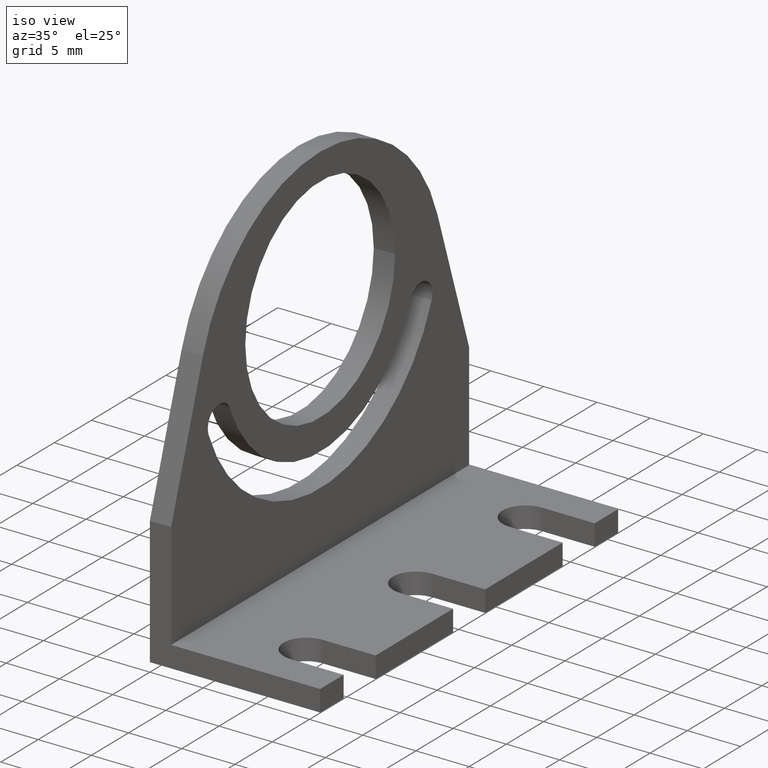
[diagram: clean part render]
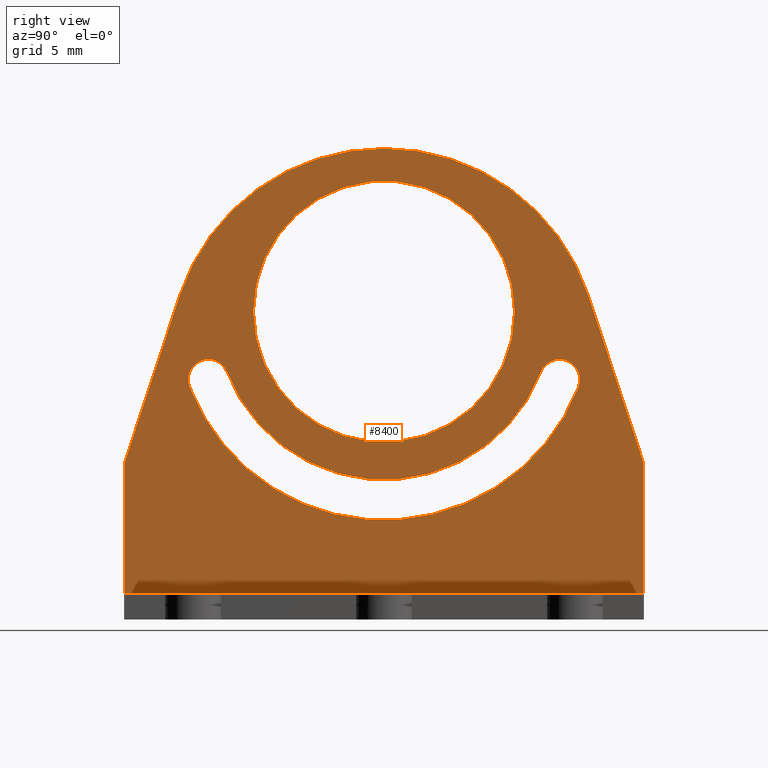
[diagram: tour spotlight — one face highlighted and labeled with its STEP entity id]
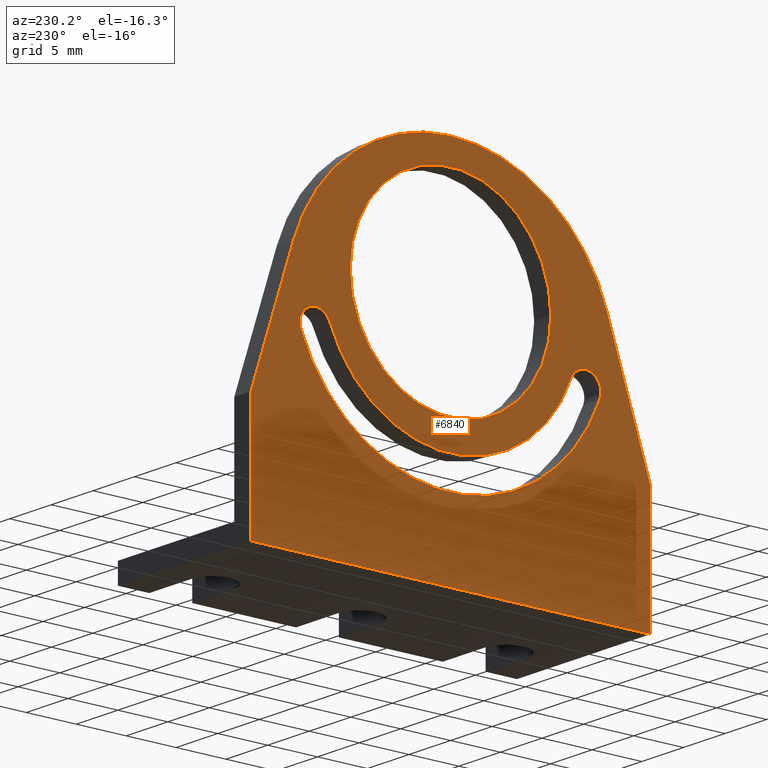
[diagram: tour spotlight — one face highlighted and labeled with its STEP entity id]
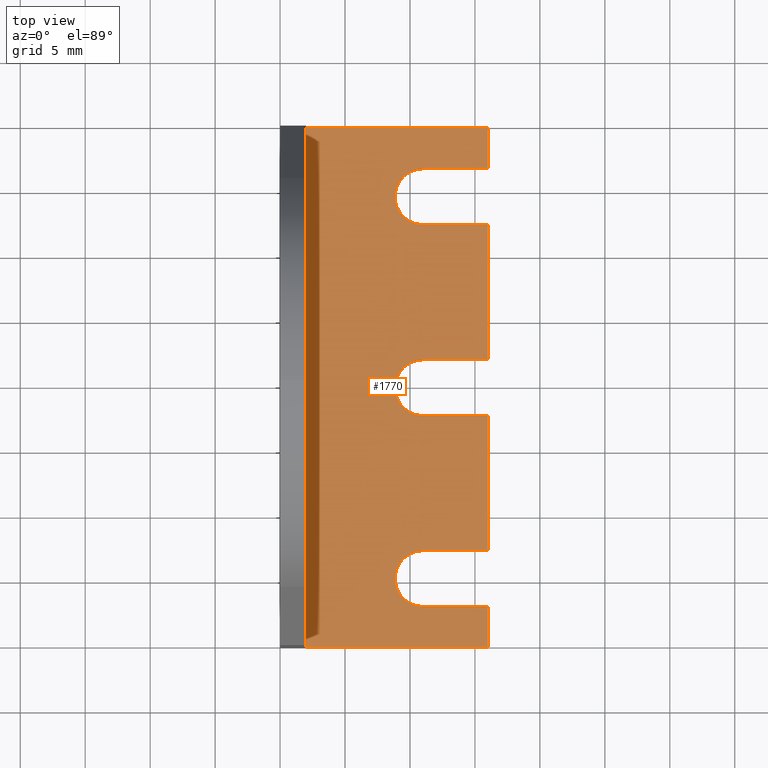
[diagram: tour spotlight — one face highlighted and labeled with its STEP entity id]
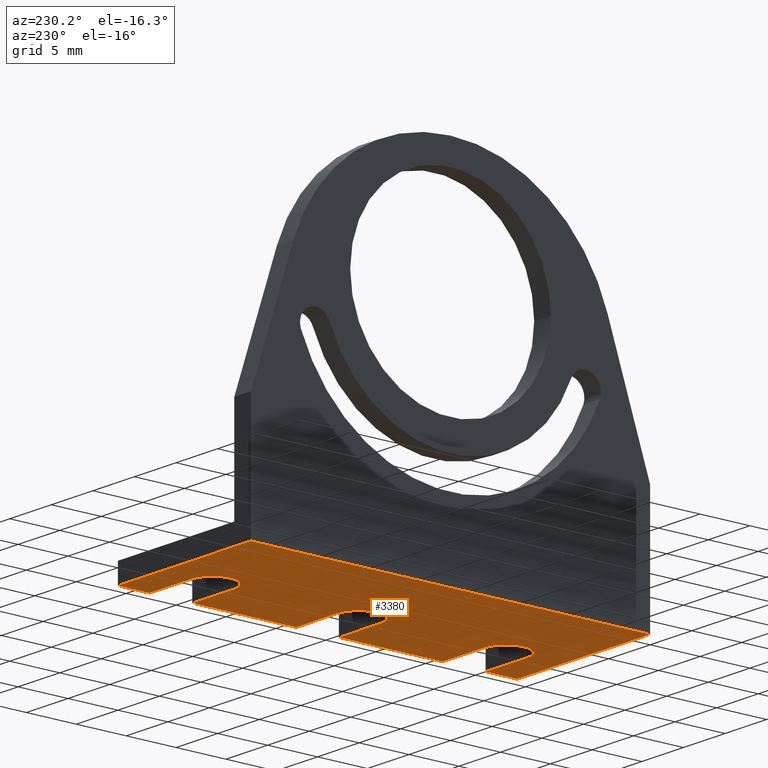
[diagram: tour spotlight — one face highlighted and labeled with its STEP entity id]
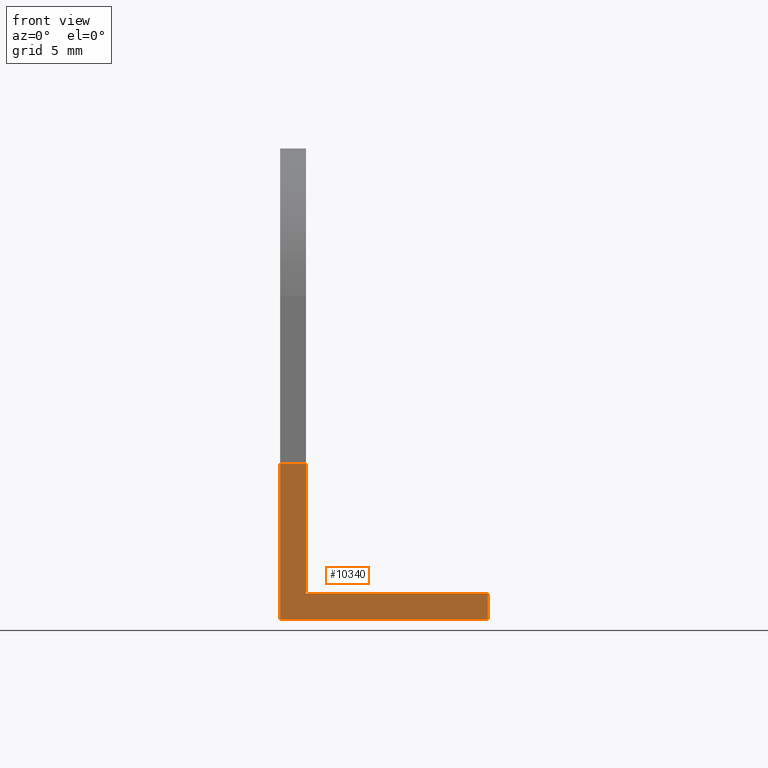
[diagram: tour spotlight — one face highlighted and labeled with its STEP entity id]
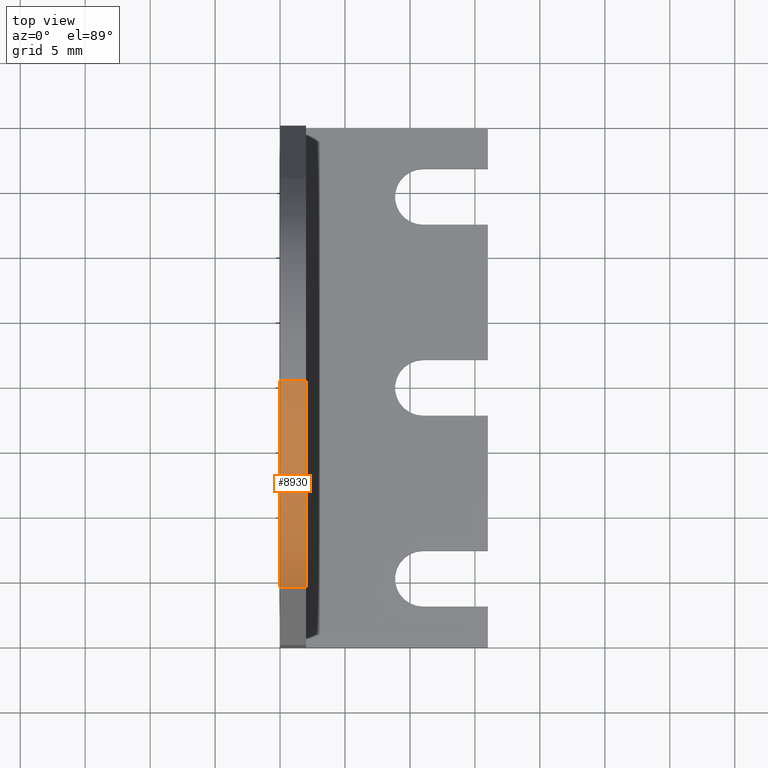
[diagram: tour spotlight — one face highlighted and labeled with its STEP entity id]
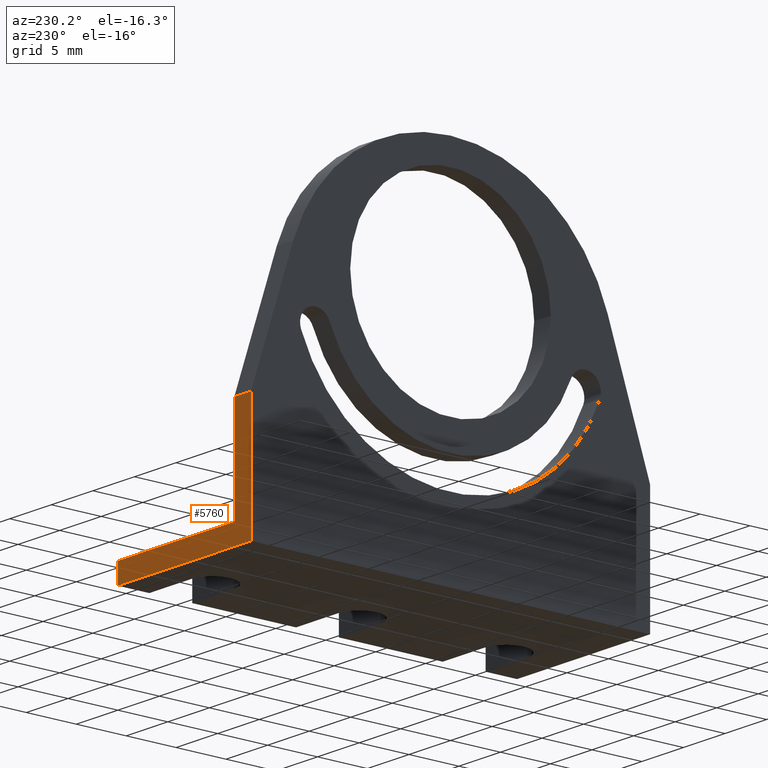
[diagram: tour spotlight — one face highlighted and labeled with its STEP entity id]
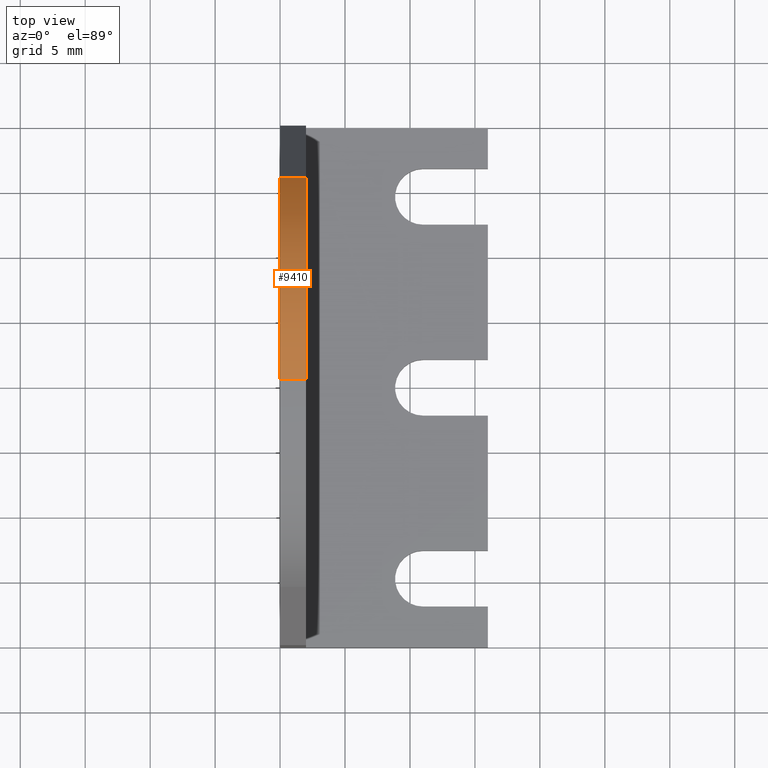
[diagram: tour spotlight — one face highlighted and labeled with its STEP entity id]
A machine part: a face-by-face anatomy tour. The part has 30 B-rep faces; the first image is the clean iso view, then the 8 largest visible faces are spotlighted one at a time (largest first), each with its STEP entity span.

Face 1 — right view, entity #8400. In plain terms, the highlighted planar face has unit normal (-1, 0, 0).
Definition (entity closure, byte-faithful):
#1570=CARTESIAN_POINT('',(-20.,1.0474940661879E-17,2.));
#1580=VERTEX_POINT('',#1570);
#1610=CARTESIAN_POINT('',(0.,1.04749406618786E-17,2.));
#1620=DIRECTION('',(-1.,1.70553012815438E-32,0.));
#1630=VECTOR('',#1620,1.);
#1640=LINE('',#1610,#1630);
#1650=CARTESIAN_POINT('',(20.,1.04749406618783E-17,2.));
#1660=VERTEX_POINT('',#1650);
#1670=EDGE_CURVE('',#1660,#1580,#1640,.T.);
#5040=CARTESIAN_POINT('',(-14.9702258308515,15.9125274451357,2.));
#5050=VERTEX_POINT('',#5040);
#5230=CARTESIAN_POINT('',(14.9702258308515,15.9125274451357,2.));
#5240=VERTEX_POINT('',#5230);
#5270=CARTESIAN_POINT('',(0.,21.7,2.));
#5280=DIRECTION('',(0.,0.,-1.));
#5290=DIRECTION('',(0.932724350831865,-0.360590190334229,0.));
#5300=AXIS2_PLACEMENT_3D('',#5270,#5280,#5290);
#5310=CIRCLE('',#5300,16.05);
#5320=EDGE_CURVE('',#5240,#5050,#5310,.T.);
#5550=CARTESIAN_POINT('',(20.,10.,2.));
#5560=VERTEX_POINT('',#5550);
#5680=CARTESIAN_POINT('',(20.,0.,2.));
#5690=DIRECTION('',(0.,1.,0.));
#5700=VECTOR('',#5690,1.);
#5710=LINE('',#5680,#5700);
#5720=EDGE_CURVE('',#1660,#5560,#5710,.T.);
#7010=CARTESIAN_POINT('',(-10.05,21.7,2.));
#7020=VERTEX_POINT('',#7010);
#7050=CARTESIAN_POINT('',(0.,21.7,2.));
#7060=DIRECTION('',(0.,0.,-1.));
#7070=DIRECTION('',(1.,0.,0.));
#7080=AXIS2_PLACEMENT_3D('',#7050,#7060,#7070);
#7090=CIRCLE('',#7080,10.05);
#7100=CARTESIAN_POINT('',(10.05,21.7,2.));
#7110=VERTEX_POINT('',#7100);
#7120=EDGE_CURVE('',#7020,#7110,#7090,.T.);
#7500=CARTESIAN_POINT('',(20.,34.25,2.));
#7510=DIRECTION('',(0.,0.,-1.));
#7520=DIRECTION('',(-1.,0.,0.));
#7530=AXIS2_PLACEMENT_3D('',#7500,#7510,#7520);
#7540=PLANE('',#7530);
#7550=CARTESIAN_POINT('',(-13.5245030870621,16.4714422401539,2.));
#7560=DIRECTION('',(0.,0.,-1.));
#7570=DIRECTION('',(-0.932724350831821,-0.360590190334342,0.));
#7580=AXIS2_PLACEMENT_3D('',#7550,#7560,#7570);
#7590=CIRCLE('',#7580,1.55);
#7600=CARTESIAN_POINT('',(-12.0787803432728,17.0303570351721,2.));
#7610=VERTEX_POINT('',#7600);
#7620=EDGE_CURVE('',#5050,#7610,#7590,.T.);
#7630=ORIENTED_EDGE('',*,*,#7620,.T.);
#7640=ORIENTED_EDGE('',*,*,#5320,.T.);
#7650=CARTESIAN_POINT('',(13.5245030870621,16.4714422401539,2.));
#7660=DIRECTION('',(0.,0.,-1.));
#7670=DIRECTION('',(-0.932724350831755,0.360590190334513,0.));
#7680=AXIS2_PLACEMENT_3D('',#7650,#7660,#7670);
#7690=CIRCLE('',#7680,1.55);
#7700=CARTESIAN_POINT('',(12.0787803432727,17.0303570351719,2.));
#7710=VERTEX_POINT('',#7700);
#7720=EDGE_CURVE('',#7710,#5240,#7690,.T.);
#7730=ORIENTED_EDGE('',*,*,#7720,.T.);
#7740=CARTESIAN_POINT('',(0.,21.7,2.));
#7750=DIRECTION('',(0.,0.,1.));
#7760=DIRECTION('',(-0.932724350831883,-0.360590190334183,0.));
#7770=AXIS2_PLACEMENT_3D('',#7740,#7750,#7760);
#7780=CIRCLE('',#7770,12.95);
#7790=EDGE_CURVE('',#7610,#7710,#7780,.T.);
#7800=ORIENTED_EDGE('',*,*,#7790,.T.);
#7810=EDGE_LOOP('',(#7800,#7730,#7640,#7630));
#7820=FACE_BOUND('',#7810,.T.);
#7830=ORIENTED_EDGE('',*,*,#7120,.T.);
#7840=EDGE_CURVE('',#7110,#7020,#7090,.T.);
#7850=ORIENTED_EDGE('',*,*,#7840,.T.);
#7860=EDGE_LOOP('',(#7850,#7830));
#7870=FACE_BOUND('',#7860,.T.);
#7880=CARTESIAN_POINT('',(-23.2989690721649,0.,2.));
#7890=DIRECTION('',(-0.313289164578338,-0.949657780128088,0.));
#7900=VECTOR('',#7890,1.);
#7910=LINE('',#7880,#7900);
#7920=CARTESIAN_POINT('',(-15.7379723825014,22.9192712155426,2.));
#7930=VERTEX_POINT('',#7920);
#7940=CARTESIAN_POINT('',(-20.,9.99999999999998,2.));
#7950=VERTEX_POINT('',#7940);
#7960=EDGE_CURVE('',#7930,#7950,#7910,.T.);
#7970=ORIENTED_EDGE('',*,*,#7960,.T.);
#7980=CARTESIAN_POINT('',(-0.0686190103879733,17.75,2.));
#7990=DIRECTION('',(0.,0.,1.));
#8000=DIRECTION('',(2.25408917120865E-16,1.,0.));
#8010=AXIS2_PLACEMENT_3D('',#7980,#7990,#8000);
#8020=CIRCLE('',#8010,16.5);
#8030=CARTESIAN_POINT('',(-0.0686190103879731,34.25,2.));
#8040=VERTEX_POINT('',#8030);
#8050=EDGE_CURVE('',#8040,#7930,#8020,.T.);
#8060=ORIENTED_EDGE('',*,*,#8050,.T.);
#8070=CARTESIAN_POINT('',(0.0686190103879731,34.25,2.));
#8080=DIRECTION('',(-1.,0.,0.));
#8090=VECTOR('',#8080,1.);
#8100=LINE('',#8070,#8090);
#8110=CARTESIAN_POINT('',(0.0686190103879714,34.25,2.));
#8120=VERTEX_POINT('',#8110);
#8130=EDGE_CURVE('',#8120,#8040,#8100,.T.);
#8140=ORIENTED_EDGE('',*,*,#8130,.T.);
#8150=CARTESIAN_POINT('',(0.0686190103879724,17.75,2.));
#8160=DIRECTION('',(0.,0.,1.));
#8170=DIRECTION('',(0.949657780128088,0.313289164578336,0.));
#8180=AXIS2_PLACEMENT_3D('',#8150,#8160,#8170);
#8190=CIRCLE('',#8180,16.5);
#8200=CARTESIAN_POINT('',(15.7379723825014,22.9192712155426,2.));
#8210=VERTEX_POINT('',#8200);
#8220=EDGE_CURVE('',#8210,#8120,#8190,.T.);
#8230=ORIENTED_EDGE('',*,*,#8220,.T.);
#8240=CARTESIAN_POINT('',(23.2989690721649,0.,2.));
#8250=DIRECTION('',(-0.313289164578338,0.949657780128088,0.));
#8260=VECTOR('',#8250,1.);
#8270=LINE('',#8240,#8260);
#8280=EDGE_CURVE('',#5560,#8210,#8270,.T.);
#8290=ORIENTED_EDGE('',*,*,#8280,.T.);
#8300=ORIENTED_EDGE('',*,*,#5720,.T.);
#8310=ORIENTED_EDGE('',*,*,#1670,.F.);
#8320=CARTESIAN_POINT('',(-20.,0.,2.));
#8330=DIRECTION('',(0.,-1.,0.));
#8340=VECTOR('',#8330,1.);
#8350=LINE('',#8320,#8340);
#8360=EDGE_CURVE('',#7950,#1580,#8350,.T.);
#8370=ORIENTED_EDGE('',*,*,#8360,.T.);
#8380=EDGE_LOOP('',(#8370,#8310,#8300,#8290,#8230,#8140,#8060,#7970));
#8390=FACE_OUTER_BOUND('',#8380,.T.);
#8400=ADVANCED_FACE('',(#7820,#7870,#8390),#7540,.F.);

Face 2 — auxiliary view, entity #6840. In plain terms, the highlighted planar face has unit normal (-1, 0, 0).
Definition (entity closure, byte-faithful):
#2270=CARTESIAN_POINT('',(20.,-2.,0.));
#2280=VERTEX_POINT('',#2270);
#2310=CARTESIAN_POINT('',(0.,-2.,0.));
#2320=DIRECTION('',(-1.,1.70553012815438E-32,0.));
#2330=VECTOR('',#2320,1.);
#2340=LINE('',#2310,#2330);
#2350=CARTESIAN_POINT('',(-20.,-2.,0.));
#2360=VERTEX_POINT('',#2350);
#2370=EDGE_CURVE('',#2280,#2360,#2340,.T.);
#5060=CARTESIAN_POINT('',(-14.9702258308515,15.9125274451357,0.));
#5070=VERTEX_POINT('',#5060);
#5100=CARTESIAN_POINT('',(0.,21.7,0.));
#5110=DIRECTION('',(0.,0.,1.));
#5120=DIRECTION('',(-0.932724350831866,-0.360590190334227,0.));
#5130=AXIS2_PLACEMENT_3D('',#5100,#5110,#5120);
#5140=CIRCLE('',#5130,16.05);
#5150=CARTESIAN_POINT('',(14.9702258308515,15.9125274451357,0.));
#5160=VERTEX_POINT('',#5150);
#5170=EDGE_CURVE('',#5070,#5160,#5140,.T.);
#5530=CARTESIAN_POINT('',(20.,10.,0.));
#5540=VERTEX_POINT('',#5530);
#5590=CARTESIAN_POINT('',(20.,0.,0.));
#5600=DIRECTION('',(0.,1.,0.));
#5610=VECTOR('',#5600,1.);
#5620=LINE('',#5590,#5610);
#5630=EDGE_CURVE('',#2280,#5540,#5620,.T.);
#5840=CARTESIAN_POINT('',(20.,34.25,0.));
#5850=DIRECTION('',(0.,0.,-1.));
#5860=DIRECTION('',(-1.,0.,0.));
#5870=AXIS2_PLACEMENT_3D('',#5840,#5850,#5860);
#5880=PLANE('',#5870);
#5890=ORIENTED_EDGE('',*,*,#5170,.T.);
#5900=CARTESIAN_POINT('',(-13.5245030870621,16.4714422401539,0.));
#5910=DIRECTION('',(0.,0.,1.));
#5920=DIRECTION('',(0.932724350831766,0.360590190334485,0.));
#5930=AXIS2_PLACEMENT_3D('',#5900,#5910,#5920);
#5940=CIRCLE('',#5930,1.55);
#5950=CARTESIAN_POINT('',(-12.0787803432728,17.0303570351721,0.));
#5960=VERTEX_POINT('',#5950);
#5970=EDGE_CURVE('',#5960,#5070,#5940,.T.);
#5980=ORIENTED_EDGE('',*,*,#5970,.T.);
#5990=CARTESIAN_POINT('',(0.,21.7,0.));
#6000=DIRECTION('',(0.,0.,-1.));
#6010=DIRECTION('',(0.932724350831885,-0.360590190334179,0.));
#6020=AXIS2_PLACEMENT_3D('',#5990,#6000,#6010);
#6030=CIRCLE('',#6020,12.95);
#6040=CARTESIAN_POINT('',(12.0787803432728,17.0303570351721,0.));
#6050=VERTEX_POINT('',#6040);
#6060=EDGE_CURVE('',#6050,#5960,#6030,.T.);
#6070=ORIENTED_EDGE('',*,*,#6060,.T.);
#6080=CARTESIAN_POINT('',(13.5245030870621,16.4714422401539,0.));
#6090=DIRECTION('',(0.,0.,1.));
#6100=DIRECTION('',(0.932724350831815,-0.36059019033436,0.));
#6110=AXIS2_PLACEMENT_3D('',#6080,#6090,#6100);
#6120=CIRCLE('',#6110,1.55);
#6130=EDGE_CURVE('',#5160,#6050,#6120,.T.);
#6140=ORIENTED_EDGE('',*,*,#6130,.T.);
#6150=EDGE_LOOP('',(#6140,#6070,#5980,#5890));
#6160=FACE_BOUND('',#6150,.T.);
#6170=CARTESIAN_POINT('',(0.,21.7,0.));
#6180=DIRECTION('',(0.,0.,1.));
#6190=DIRECTION('',(-1.,0.,0.));
#6200=AXIS2_PLACEMENT_3D('',#6170,#6180,#6190);
#6210=CIRCLE('',#6200,10.05);
#6220=CARTESIAN_POINT('',(-10.05,21.7,0.));
#6230=VERTEX_POINT('',#6220);
#6240=CARTESIAN_POINT('',(10.05,21.7,0.));
#6250=VERTEX_POINT('',#6240);
#6260=EDGE_CURVE('',#6230,#6250,#6210,.T.);
#6270=ORIENTED_EDGE('',*,*,#6260,.T.);
#6280=EDGE_CURVE('',#6250,#6230,#6210,.T.);
#6290=ORIENTED_EDGE('',*,*,#6280,.T.);
#6300=EDGE_LOOP('',(#6290,#6270));
#6310=FACE_BOUND('',#6300,.T.);
#6320=CARTESIAN_POINT('',(-20.,0.,0.));
#6330=DIRECTION('',(0.,-1.,0.));
#6340=VECTOR('',#6330,1.);
#6350=LINE('',#6320,#6340);
#6360=CARTESIAN_POINT('',(-20.,9.99999999999999,0.));
#6370=VERTEX_POINT('',#6360);
#6380=EDGE_CURVE('',#6370,#2360,#6350,.T.);
#6390=ORIENTED_EDGE('',*,*,#6380,.F.);
#6400=ORIENTED_EDGE('',*,*,#2370,.T.);
#6410=ORIENTED_EDGE('',*,*,#5630,.F.);
#6420=CARTESIAN_POINT('',(23.2989690721649,0.,0.));
#6430=DIRECTION('',(0.313289164578338,-0.949657780128088,0.));
#6440=VECTOR('',#6430,1.);
#6450=LINE('',#6420,#6440);
#6460=CARTESIAN_POINT('',(15.7379723825014,22.9192712155426,0.));
#6470=VERTEX_POINT('',#6460);
#6480=EDGE_CURVE('',#6470,#5540,#6450,.T.);
#6490=ORIENTED_EDGE('',*,*,#6480,.T.);
#6500=CARTESIAN_POINT('',(0.0686190103879724,17.75,0.));
#6510=DIRECTION('',(0.,0.,-1.));
#6520=DIRECTION('',(4.45771365947979E-17,1.,0.));
#6530=AXIS2_PLACEMENT_3D('',#6500,#6510,#6520);
#6540=CIRCLE('',#6530,16.5);
#6550=CARTESIAN_POINT('',(0.0686190103879731,34.25,0.));
#6560=VERTEX_POINT('',#6550);
#6570=EDGE_CURVE('',#6560,#6470,#6540,.T.);
#6580=ORIENTED_EDGE('',*,*,#6570,.T.);
#6590=CARTESIAN_POINT('',(0.0686190103879731,34.25,0.));
#6600=DIRECTION('',(-1.,0.,0.));
#6610=VECTOR('',#6600,1.);
#6620=LINE('',#6590,#6610);
#6630=CARTESIAN_POINT('',(-0.0686190103879731,34.25,0.));
#6640=VERTEX_POINT('',#6630);
#6650=EDGE_CURVE('',#6560,#6640,#6620,.T.);
#6660=ORIENTED_EDGE('',*,*,#6650,.F.);
#6670=CARTESIAN_POINT('',(-0.0686190103879733,17.75,0.));
#6680=DIRECTION('',(0.,0.,-1.));
#6690=DIRECTION('',(-0.949657780128081,0.313289164578358,0.));
#6700=AXIS2_PLACEMENT_3D('',#6670,#6680,#6690);
#6710=CIRCLE('',#6700,16.5);
#6720=CARTESIAN_POINT('',(-15.7379723825014,22.9192712155428,0.));
#6730=VERTEX_POINT('',#6720);
#6740=EDGE_CURVE('',#6730,#6640,#6710,.T.);
#6750=ORIENTED_EDGE('',*,*,#6740,.T.);
#6760=CARTESIAN_POINT('',(-23.2989690721649,0.,0.));
#6770=DIRECTION('',(0.313289164578338,0.949657780128088,0.));
#6780=VECTOR('',#6770,1.);
#6790=LINE('',#6760,#6780);
#6800=EDGE_CURVE('',#6370,#6730,#6790,.T.);
#6810=ORIENTED_EDGE('',*,*,#6800,.T.);
#6820=EDGE_LOOP('',(#6810,#6750,#6660,#6580,#6490,#6410,#6400,#6390));
#6830=FACE_OUTER_BOUND('',#6820,.T.);
#6840=ADVANCED_FACE('',(#6160,#6310,#6830),#5880,.T.);

Face 3 — top view, entity #1770. In plain terms, the highlighted planar face has unit normal (0, 0, 1).
Definition (entity closure, byte-faithful):
#120=CARTESIAN_POINT('',(12.55,-1.82477793007524E-15,16.));
#130=VERTEX_POINT('',#120);
#280=CARTESIAN_POINT('',(2.15,-1.82477793007524E-15,16.));
#290=VERTEX_POINT('',#280);
#320=CARTESIAN_POINT('',(0.,-1.82477793007524E-15,16.));
#330=DIRECTION('',(1.,7.39557098644699E-32,-3.46944695195361E-16));
#340=VECTOR('',#330,1.);
#350=LINE('',#320,#340);
#360=EDGE_CURVE('',#290,#130,#350,.T.);
#480=CARTESIAN_POINT('',(20.,3.65768059373703E-17,1.80088514248714));
#490=DIRECTION('',(1.70553012815438E-32,1.,1.31089490766937E-16));
#500=DIRECTION('',(0.,-1.31089490766937E-16,1.));
#510=AXIS2_PLACEMENT_3D('',#480,#490,#500);
#520=PLANE('',#510);
#530=CARTESIAN_POINT('',(0.,-1.82477793007524E-15,16.));
#540=DIRECTION('',(1.,7.39557098644699E-32,-3.46944695195361E-16));
#550=VECTOR('',#540,1.);
#560=LINE('',#530,#550);
#570=CARTESIAN_POINT('',(16.85,-1.82477793007524E-15,16.));
#580=VERTEX_POINT('',#570);
#590=CARTESIAN_POINT('',(20.,-1.82477793007524E-15,16.));
#600=VERTEX_POINT('',#590);
#610=EDGE_CURVE('',#580,#600,#560,.T.);
#620=ORIENTED_EDGE('',*,*,#610,.T.);
#630=CARTESIAN_POINT('',(16.85,2.72653922195752E-16,0.));
#640=DIRECTION('',(0.,1.31089490766937E-16,-1.));
#650=VECTOR('',#640,1.);
#660=LINE('',#630,#650);
#670=CARTESIAN_POINT('',(16.85,-1.16933047624056E-15,11.));
#680=VERTEX_POINT('',#670);
#690=EDGE_CURVE('',#580,#680,#660,.T.);
#700=ORIENTED_EDGE('',*,*,#690,.F.);
#710=CARTESIAN_POINT('',(14.7,-1.66533453693773E-15,11.));
#720=DIRECTION('',(-3.42381711077589E-32,-1.,-1.31089490766937E-16));
#730=DIRECTION('',(-1.,1.00900813458502E-30,-7.43591235097779E-15));
#740=AXIS2_PLACEMENT_3D('',#710,#720,#730);
#750=CIRCLE('',#740,2.15);
#760=CARTESIAN_POINT('',(12.55,-1.22124532708767E-15,11.));
#770=VERTEX_POINT('',#760);
#780=EDGE_CURVE('',#770,#680,#750,.T.);
#790=ORIENTED_EDGE('',*,*,#780,.T.);
#800=CARTESIAN_POINT('',(12.55,2.72653922195752E-16,0.));
#810=DIRECTION('',(-2.42618667968785E-16,-1.31089490766937E-16,1.));
#820=VECTOR('',#810,1.);
#830=LINE('',#800,#820);
#840=EDGE_CURVE('',#770,#130,#830,.T.);
#850=ORIENTED_EDGE('',*,*,#840,.F.);
#860=ORIENTED_EDGE('',*,*,#360,.T.);
#870=CARTESIAN_POINT('',(2.15,2.72653922195753E-16,0.));
#880=DIRECTION('',(-2.60208521396521E-16,-1.31089490766937E-16,1.));
#890=VECTOR('',#880,1.);
#900=LINE('',#870,#890);
#910=CARTESIAN_POINT('',(2.15,-1.22124532708767E-15,11.));
#920=VERTEX_POINT('',#910);
#930=EDGE_CURVE('',#920,#290,#900,.T.);
#940=ORIENTED_EDGE('',*,*,#930,.T.);
#950=CARTESIAN_POINT('',(1.70553012815438E-32,-1.66533453693773E-15,11.)
);
#960=DIRECTION('',(0.,-1.,-1.31089490766937E-16));
#970=DIRECTION('',(-1.,0.,0.));
#980=AXIS2_PLACEMENT_3D('',#950,#960,#970);
#990=CIRCLE('',#980,2.15);
#1000=CARTESIAN_POINT('',(-2.15,-1.22124532708767E-15,11.));
#1010=VERTEX_POINT('',#1000);
#1020=EDGE_CURVE('',#1010,#920,#990,.T.);
#1030=ORIENTED_EDGE('',*,*,#1020,.T.);
#1040=CARTESIAN_POINT('',(-2.15,2.72653922195753E-16,0.));
#1050=DIRECTION('',(3.46944695195362E-16,1.31089490766937E-16,-1.));
#1060=VECTOR('',#1050,1.);
#1070=LINE('',#1040,#1060);
#1080=CARTESIAN_POINT('',(-2.15000000000001,-1.82477793007524E-15,16.));
#1090=VERTEX_POINT('',#1080);
#1100=EDGE_CURVE('',#1090,#1010,#1070,.T.);
#1110=ORIENTED_EDGE('',*,*,#1100,.T.);
#1120=CARTESIAN_POINT('',(0.,-1.82477793007524E-15,16.));
#1130=DIRECTION('',(1.,7.39557098644699E-32,-3.46944695195361E-16));
#1140=VECTOR('',#1130,1.);
#1150=LINE('',#1120,#1140);
#1160=CARTESIAN_POINT('',(-12.55,-1.82477793007524E-15,16.));
#1170=VERTEX_POINT('',#1160);
#1180=EDGE_CURVE('',#1170,#1090,#1150,.T.);
#1190=ORIENTED_EDGE('',*,*,#1180,.T.);
#1200=CARTESIAN_POINT('',(-12.55,2.72653922195753E-16,0.));
#1210=DIRECTION('',(0.,-1.31089490766937E-16,1.));
#1220=VECTOR('',#1210,1.);
#1230=LINE('',#1200,#1220);
#1240=CARTESIAN_POINT('',(-12.55,-1.22124532708767E-15,11.));
#1250=VERTEX_POINT('',#1240);
#1260=EDGE_CURVE('',#1250,#1170,#1230,.T.);
#1270=ORIENTED_EDGE('',*,*,#1260,.T.);
#1280=CARTESIAN_POINT('',(-14.7,-1.66533453693773E-15,11.));
#1290=DIRECTION('',(-2.99235785542732E-32,-1.,-1.31089490766937E-16));
#1300=DIRECTION('',(-1.,-3.76084850163506E-30,2.89174369204692E-14));
#1310=AXIS2_PLACEMENT_3D('',#1280,#1290,#1300);
#1320=CIRCLE('',#1310,2.15);
#1330=CARTESIAN_POINT('',(-16.85,-1.22124532708767E-15,11.));
#1340=VERTEX_POINT('',#1330);
#1350=EDGE_CURVE('',#1340,#1250,#1320,.T.);
#1360=ORIENTED_EDGE('',*,*,#1350,.T.);
#1370=CARTESIAN_POINT('',(-16.85,2.72653922195753E-16,0.));
#1380=DIRECTION('',(0.,1.31089490766937E-16,-1.));
#1390=VECTOR('',#1380,1.);
#1400=LINE('',#1370,#1390);
#1410=CARTESIAN_POINT('',(-16.85,-1.82477793007524E-15,16.));
#1420=VERTEX_POINT('',#1410);
#1430=EDGE_CURVE('',#1420,#1340,#1400,.T.);
#1440=ORIENTED_EDGE('',*,*,#1430,.T.);
#1450=CARTESIAN_POINT('',(0.,-1.82477793007524E-15,16.));
#1460=DIRECTION('',(1.,7.39557098644699E-32,-3.46944695195361E-16));
#1470=VECTOR('',#1460,1.);
#1480=LINE('',#1450,#1470);
#1490=CARTESIAN_POINT('',(-20.,-1.82477793007524E-15,16.));
#1500=VERTEX_POINT('',#1490);
#1510=EDGE_CURVE('',#1500,#1420,#1480,.T.);
#1520=ORIENTED_EDGE('',*,*,#1510,.T.);
#1530=CARTESIAN_POINT('',(-20.,2.72653922195753E-16,0.));
#1540=DIRECTION('',(0.,-1.31089490766937E-16,1.));
#1550=VECTOR('',#1540,1.);
#1560=LINE('',#1530,#1550);
#1570=CARTESIAN_POINT('',(-20.,1.0474940661879E-17,2.));
#1580=VERTEX_POINT('',#1570);
#1590=EDGE_CURVE('',#1580,#1500,#1560,.T.);
#1600=ORIENTED_EDGE('',*,*,#1590,.T.);
#1610=CARTESIAN_POINT('',(0.,1.04749406618786E-17,2.));
#1620=DIRECTION('',(-1.,1.70553012815438E-32,0.));
#1630=VECTOR('',#1620,1.);
#1640=LINE('',#1610,#1630);
#1650=CARTESIAN_POINT('',(20.,1.04749406618783E-17,2.));
#1660=VERTEX_POINT('',#1650);
#1670=EDGE_CURVE('',#1660,#1580,#1640,.T.);
#1680=ORIENTED_EDGE('',*,*,#1670,.T.);
#1690=CARTESIAN_POINT('',(20.,2.72653922195752E-16,0.));
#1700=DIRECTION('',(0.,1.31089490766937E-16,-1.));
#1710=VECTOR('',#1700,1.);
#1720=LINE('',#1690,#1710);
#1730=EDGE_CURVE('',#600,#1660,#1720,.T.);
#1740=ORIENTED_EDGE('',*,*,#1730,.T.);
#1750=EDGE_LOOP('',(#1740,#1680,#1600,#1520,#1440,#1360,#1270,#1190,
#1110,#1030,#940,#860,#850,#790,#700,#620));
#1760=FACE_OUTER_BOUND('',#1750,.T.);
#1770=ADVANCED_FACE('',(#1760),#520,.T.);

Face 4 — auxiliary view, entity #3380. In plain terms, the highlighted planar face has unit normal (0, 0, 1).
Definition (entity closure, byte-faithful):
#100=CARTESIAN_POINT('',(12.55,-2.,16.));
#110=VERTEX_POINT('',#100);
#160=CARTESIAN_POINT('',(0.,-2.,16.));
#170=DIRECTION('',(1.,7.39557098644699E-32,-3.46944695195361E-16));
#180=VECTOR('',#170,1.);
#190=LINE('',#160,#180);
#200=CARTESIAN_POINT('',(2.15,-2.,16.));
#210=VERTEX_POINT('',#200);
#220=EDGE_CURVE('',#210,#110,#190,.T.);
#1910=CARTESIAN_POINT('',(2.15,-2.,0.));
#1920=DIRECTION('',(-2.60208521396521E-16,-1.31089490766937E-16,1.));
#1930=VECTOR('',#1920,1.);
#1940=LINE('',#1910,#1930);
#1950=CARTESIAN_POINT('',(2.15,-2.,11.));
#1960=VERTEX_POINT('',#1950);
#1970=EDGE_CURVE('',#1960,#210,#1940,.T.);
#2160=CARTESIAN_POINT('',(20.,-2.,1.80088514248714));
#2170=DIRECTION('',(1.70553012815438E-32,1.,1.31089490766937E-16));
#2180=DIRECTION('',(-2.01027989143632E-51,-1.31089490766937E-16,1.));
#2190=AXIS2_PLACEMENT_3D('',#2160,#2170,#2180);
#2200=PLANE('',#2190);
#2210=CARTESIAN_POINT('',(20.,-2.,0.));
#2220=DIRECTION('',(0.,1.31089490766937E-16,-1.));
#2230=VECTOR('',#2220,1.);
#2240=LINE('',#2210,#2230);
#2250=CARTESIAN_POINT('',(20.,-2.,16.));
#2260=VERTEX_POINT('',#2250);
#2270=CARTESIAN_POINT('',(20.,-2.,0.));
#2280=VERTEX_POINT('',#2270);
#2290=EDGE_CURVE('',#2260,#2280,#2240,.T.);
#2300=ORIENTED_EDGE('',*,*,#2290,.F.);
#2310=CARTESIAN_POINT('',(0.,-2.,0.));
#2320=DIRECTION('',(-1.,1.70553012815438E-32,0.));
#2330=VECTOR('',#2320,1.);
#2340=LINE('',#2310,#2330);
#2350=CARTESIAN_POINT('',(-20.,-2.,0.));
#2360=VERTEX_POINT('',#2350);
#2370=EDGE_CURVE('',#2280,#2360,#2340,.T.);
#2380=ORIENTED_EDGE('',*,*,#2370,.F.);
#2390=CARTESIAN_POINT('',(-20.,-2.,0.));
#2400=DIRECTION('',(0.,-1.31089490766937E-16,1.));
#2410=VECTOR('',#2400,1.);
#2420=LINE('',#2390,#2410);
#2430=CARTESIAN_POINT('',(-20.,-2.,16.));
#2440=VERTEX_POINT('',#2430);
#2450=EDGE_CURVE('',#2360,#2440,#2420,.T.);
#2460=ORIENTED_EDGE('',*,*,#2450,.F.);
#2470=CARTESIAN_POINT('',(0.,-2.,16.));
#2480=DIRECTION('',(1.,7.39557098644699E-32,-3.46944695195361E-16));
#2490=VECTOR('',#2480,1.);
#2500=LINE('',#2470,#2490);
#2510=CARTESIAN_POINT('',(-16.85,-2.,16.));
#2520=VERTEX_POINT('',#2510);
#2530=EDGE_CURVE('',#2440,#2520,#2500,.T.);
#2540=ORIENTED_EDGE('',*,*,#2530,.F.);
#2550=CARTESIAN_POINT('',(-16.85,-2.,0.));
#2560=DIRECTION('',(0.,1.31089490766937E-16,-1.));
#2570=VECTOR('',#2560,1.);
#2580=LINE('',#2550,#2570);
#2590=CARTESIAN_POINT('',(-16.85,-2.,11.));
#2600=VERTEX_POINT('',#2590);
#2610=EDGE_CURVE('',#2520,#2600,#2580,.T.);
#2620=ORIENTED_EDGE('',*,*,#2610,.F.);
#2630=CARTESIAN_POINT('',(-14.7,-2.,11.));
#2640=DIRECTION('',(0.,1.,1.31089490766937E-16));
#2650=DIRECTION('',(1.,0.,0.));
#2660=AXIS2_PLACEMENT_3D('',#2630,#2640,#2650);
#2670=CIRCLE('',#2660,2.15);
#2680=CARTESIAN_POINT('',(-12.55,-2.,11.));
#2690=VERTEX_POINT('',#2680);
#2700=EDGE_CURVE('',#2690,#2600,#2670,.T.);
#2710=ORIENTED_EDGE('',*,*,#2700,.T.);
#2720=CARTESIAN_POINT('',(-12.55,-2.,0.));
#2730=DIRECTION('',(0.,-1.31089490766937E-16,1.));
#2740=VECTOR('',#2730,1.);
#2750=LINE('',#2720,#2740);
#2760=CARTESIAN_POINT('',(-12.55,-2.,16.));
#2770=VERTEX_POINT('',#2760);
#2780=EDGE_CURVE('',#2690,#2770,#2750,.T.);
#2790=ORIENTED_EDGE('',*,*,#2780,.F.);
#2800=CARTESIAN_POINT('',(0.,-2.,16.));
#2810=DIRECTION('',(1.,7.39557098644699E-32,-3.46944695195361E-16));
#2820=VECTOR('',#2810,1.);
#2830=LINE('',#2800,#2820);
#2840=CARTESIAN_POINT('',(-2.15000000000001,-2.,16.));
#2850=VERTEX_POINT('',#2840);
#2860=EDGE_CURVE('',#2770,#2850,#2830,.T.);
#2870=ORIENTED_EDGE('',*,*,#2860,.F.);
#2880=CARTESIAN_POINT('',(-2.15,-2.,0.));
#2890=DIRECTION('',(3.46944695195362E-16,1.31089490766937E-16,-1.));
#2900=VECTOR('',#2890,1.);
#2910=LINE('',#2880,#2900);
#2920=CARTESIAN_POINT('',(-2.15,-2.,11.));
#2930=VERTEX_POINT('',#2920);
#2940=EDGE_CURVE('',#2850,#2930,#2910,.T.);
#2950=ORIENTED_EDGE('',*,*,#2940,.F.);
#2960=CARTESIAN_POINT('',(-1.70553012815438E-32,-2.,11.));
#2970=DIRECTION('',(0.,1.,1.31089490766937E-16));
#2980=DIRECTION('',(1.,0.,0.));
#2990=AXIS2_PLACEMENT_3D('',#2960,#2970,#2980);
#3000=CIRCLE('',#2990,2.15);
#3010=EDGE_CURVE('',#1960,#2930,#3000,.T.);
#3020=ORIENTED_EDGE('',*,*,#3010,.T.);
#3030=ORIENTED_EDGE('',*,*,#1970,.F.);
#3040=ORIENTED_EDGE('',*,*,#220,.F.);
#3050=CARTESIAN_POINT('',(12.55,-2.,0.));
#3060=DIRECTION('',(-2.42618667968785E-16,-1.31089490766937E-16,1.));
#3070=VECTOR('',#3060,1.);
#3080=LINE('',#3050,#3070);
#3090=CARTESIAN_POINT('',(12.55,-2.,11.));
#3100=VERTEX_POINT('',#3090);
#3110=EDGE_CURVE('',#3100,#110,#3080,.T.);
#3120=ORIENTED_EDGE('',*,*,#3110,.T.);
#3130=CARTESIAN_POINT('',(14.7,-2.,11.));
#3140=DIRECTION('',(-1.94953992695451E-30,1.,1.31089490766937E-16));
#3150=DIRECTION('',(1.,0.,1.48718247019556E-14));
#3160=AXIS2_PLACEMENT_3D('',#3130,#3140,#3150);
#3170=CIRCLE('',#3160,2.15);
#3180=CARTESIAN_POINT('',(16.85,-2.,11.));
#3190=VERTEX_POINT('',#3180);
#3200=EDGE_CURVE('',#3190,#3100,#3170,.T.);
#3210=ORIENTED_EDGE('',*,*,#3200,.T.);
#3220=CARTESIAN_POINT('',(16.85,-2.,0.));
#3230=DIRECTION('',(0.,1.31089490766937E-16,-1.));
#3240=VECTOR('',#3230,1.);
#3250=LINE('',#3220,#3240);
#3260=CARTESIAN_POINT('',(16.85,-2.,16.));
#3270=VERTEX_POINT('',#3260);
#3280=EDGE_CURVE('',#3270,#3190,#3250,.T.);
#3290=ORIENTED_EDGE('',*,*,#3280,.T.);
#3300=CARTESIAN_POINT('',(0.,-2.,16.));
#3310=DIRECTION('',(1.,7.39557098644699E-32,-3.46944695195361E-16));
#3320=VECTOR('',#3310,1.);
#3330=LINE('',#3300,#3320);
#3340=EDGE_CURVE('',#3270,#2260,#3330,.T.);
#3350=ORIENTED_EDGE('',*,*,#3340,.F.);
#3360=EDGE_LOOP('',(#3350,#3290,#3210,#3120,#3040,#3030,#3020,#2950,
#2870,#2790,#2710,#2620,#2540,#2460,#2380,#2300));
#3370=FACE_OUTER_BOUND('',#3360,.T.);
#3380=ADVANCED_FACE('',(#3370),#2200,.F.);

Face 5 — front view, entity #10340. In plain terms, the highlighted planar face has unit normal (-0, -1, 0).
Definition (entity closure, byte-faithful):
#1490=CARTESIAN_POINT('',(-20.,-1.82477793007524E-15,16.));
#1500=VERTEX_POINT('',#1490);
#1530=CARTESIAN_POINT('',(-20.,2.72653922195753E-16,0.));
#1540=DIRECTION('',(0.,-1.31089490766937E-16,1.));
#1550=VECTOR('',#1540,1.);
#1560=LINE('',#1530,#1550);
#1570=CARTESIAN_POINT('',(-20.,1.0474940661879E-17,2.));
#1580=VERTEX_POINT('',#1570);
#1590=EDGE_CURVE('',#1580,#1500,#1560,.T.);
#2350=CARTESIAN_POINT('',(-20.,-2.,0.));
#2360=VERTEX_POINT('',#2350);
#2390=CARTESIAN_POINT('',(-20.,-2.,0.));
#2400=DIRECTION('',(0.,-1.31089490766937E-16,1.));
#2410=VECTOR('',#2400,1.);
#2420=LINE('',#2390,#2410);
#2430=CARTESIAN_POINT('',(-20.,-2.,16.));
#2440=VERTEX_POINT('',#2430);
#2450=EDGE_CURVE('',#2360,#2440,#2420,.T.);
#6320=CARTESIAN_POINT('',(-20.,0.,0.));
#6330=DIRECTION('',(0.,-1.,0.));
#6340=VECTOR('',#6330,1.);
#6350=LINE('',#6320,#6340);
#6360=CARTESIAN_POINT('',(-20.,9.99999999999999,0.));
#6370=VERTEX_POINT('',#6360);
#6380=EDGE_CURVE('',#6370,#2360,#6350,.T.);
#7940=CARTESIAN_POINT('',(-20.,9.99999999999998,2.));
#7950=VERTEX_POINT('',#7940);
#8320=CARTESIAN_POINT('',(-20.,0.,2.));
#8330=DIRECTION('',(0.,-1.,0.));
#8340=VECTOR('',#8330,1.);
#8350=LINE('',#8320,#8340);
#8360=EDGE_CURVE('',#7950,#1580,#8350,.T.);
#8530=CARTESIAN_POINT('',(-20.,10.,0.));
#8540=DIRECTION('',(0.,0.,1.));
#8550=VECTOR('',#8540,1.);
#8560=LINE('',#8530,#8550);
#8570=EDGE_CURVE('',#6370,#7950,#8560,.T.);
#10160=CARTESIAN_POINT('',(-20.,0.,2.));
#10170=DIRECTION('',(-1.,0.,0.));
#10180=DIRECTION('',(0.,0.,1.));
#10190=AXIS2_PLACEMENT_3D('',#10160,#10170,#10180);
#10200=PLANE('',#10190);
#10210=ORIENTED_EDGE('',*,*,#8360,.F.);
#10220=ORIENTED_EDGE('',*,*,#1590,.F.);
#10230=CARTESIAN_POINT('',(-20.,0.,16.));
#10240=DIRECTION('',(0.,-1.,-1.31089490766937E-16));
#10250=VECTOR('',#10240,1.);
#10260=LINE('',#10230,#10250);
#10270=EDGE_CURVE('',#1500,#2440,#10260,.T.);
#10280=ORIENTED_EDGE('',*,*,#10270,.F.);
#10290=ORIENTED_EDGE('',*,*,#2450,.T.);
#10300=ORIENTED_EDGE('',*,*,#6380,.T.);
#10310=ORIENTED_EDGE('',*,*,#8570,.F.);
#10320=EDGE_LOOP('',(#10310,#10300,#10290,#10280,#10220,#10210));
#10330=FACE_OUTER_BOUND('',#10320,.T.);
#10340=ADVANCED_FACE('',(#10330),#10200,.T.);

Face 6 — top view, entity #8930. In plain terms, the highlighted cylindrical surface (partial cylindrical patch) has radius 16.5 mm, axis along (-1, 0, 0).
Definition (entity closure, byte-faithful):
#6630=CARTESIAN_POINT('',(-0.0686190103879731,34.25,0.));
#6640=VERTEX_POINT('',#6630);
#6670=CARTESIAN_POINT('',(-0.0686190103879733,17.75,0.));
#6680=DIRECTION('',(0.,0.,-1.));
#6690=DIRECTION('',(-0.949657780128081,0.313289164578358,0.));
#6700=AXIS2_PLACEMENT_3D('',#6670,#6680,#6690);
#6710=CIRCLE('',#6700,16.5);
#6720=CARTESIAN_POINT('',(-15.7379723825014,22.9192712155428,0.));
#6730=VERTEX_POINT('',#6720);
#6740=EDGE_CURVE('',#6730,#6640,#6710,.T.);
#7920=CARTESIAN_POINT('',(-15.7379723825014,22.9192712155426,2.));
#7930=VERTEX_POINT('',#7920);
#7980=CARTESIAN_POINT('',(-0.0686190103879733,17.75,2.));
#7990=DIRECTION('',(0.,0.,1.));
#8000=DIRECTION('',(2.25408917120865E-16,1.,0.));
#8010=AXIS2_PLACEMENT_3D('',#7980,#7990,#8000);
#8020=CIRCLE('',#8010,16.5);
#8030=CARTESIAN_POINT('',(-0.0686190103879731,34.25,2.));
#8040=VERTEX_POINT('',#8030);
#8050=EDGE_CURVE('',#8040,#7930,#8020,.T.);
#8600=CARTESIAN_POINT('',(-15.7379723825014,22.9192712155426,0.));
#8610=DIRECTION('',(0.,0.,1.));
#8620=VECTOR('',#8610,1.);
#8630=LINE('',#8600,#8620);
#8640=EDGE_CURVE('',#6730,#7930,#8630,.T.);
#8770=CARTESIAN_POINT('',(-0.0686190103879733,17.75,2.));
#8780=DIRECTION('',(0.,0.,-1.));
#8790=DIRECTION('',(-1.,0.,0.));
#8800=AXIS2_PLACEMENT_3D('',#8770,#8780,#8790);
#8810=CYLINDRICAL_SURFACE('',#8800,16.5);
#8820=ORIENTED_EDGE('',*,*,#8640,.T.);
#8830=ORIENTED_EDGE('',*,*,#6740,.F.);
#8840=CARTESIAN_POINT('',(-0.0686190103879743,34.25,2.));
#8850=DIRECTION('',(0.,0.,-1.));
#8860=VECTOR('',#8850,1.);
#8870=LINE('',#8840,#8860);
#8880=EDGE_CURVE('',#8040,#6640,#8870,.T.);
#8890=ORIENTED_EDGE('',*,*,#8880,.T.);
#8900=ORIENTED_EDGE('',*,*,#8050,.F.);
#8910=EDGE_LOOP('',(#8900,#8890,#8830,#8820));
#8920=FACE_OUTER_BOUND('',#8910,.T.);
#8930=ADVANCED_FACE('',(#8920),#8810,.T.);

Face 7 — auxiliary view, entity #5760. In plain terms, the highlighted planar face has unit normal (0, 1, -0).
Definition (entity closure, byte-faithful):
#590=CARTESIAN_POINT('',(20.,-1.82477793007524E-15,16.));
#600=VERTEX_POINT('',#590);
#1650=CARTESIAN_POINT('',(20.,1.04749406618783E-17,2.));
#1660=VERTEX_POINT('',#1650);
#1690=CARTESIAN_POINT('',(20.,2.72653922195752E-16,0.));
#1700=DIRECTION('',(0.,1.31089490766937E-16,-1.));
#1710=VECTOR('',#1700,1.);
#1720=LINE('',#1690,#1710);
#1730=EDGE_CURVE('',#600,#1660,#1720,.T.);
#2210=CARTESIAN_POINT('',(20.,-2.,0.));
#2220=DIRECTION('',(0.,1.31089490766937E-16,-1.));
#2230=VECTOR('',#2220,1.);
#2240=LINE('',#2210,#2230);
#2250=CARTESIAN_POINT('',(20.,-2.,16.));
#2260=VERTEX_POINT('',#2250);
#2270=CARTESIAN_POINT('',(20.,-2.,0.));
#2280=VERTEX_POINT('',#2270);
#2290=EDGE_CURVE('',#2260,#2280,#2240,.T.);
#4790=CARTESIAN_POINT('',(20.,0.,16.));
#4800=DIRECTION('',(0.,-1.,-1.31089490766937E-16));
#4810=VECTOR('',#4800,1.);
#4820=LINE('',#4790,#4810);
#4830=EDGE_CURVE('',#600,#2260,#4820,.T.);
#5440=CARTESIAN_POINT('',(20.,10.,2.));
#5450=DIRECTION('',(1.,-0.,0.));
#5460=DIRECTION('',(0.,0.,-1.));
#5470=AXIS2_PLACEMENT_3D('',#5440,#5450,#5460);
#5480=PLANE('',#5470);
#5490=CARTESIAN_POINT('',(20.,10.,0.));
#5500=DIRECTION('',(0.,0.,1.));
#5510=VECTOR('',#5500,1.);
#5520=LINE('',#5490,#5510);
#5530=CARTESIAN_POINT('',(20.,10.,0.));
#5540=VERTEX_POINT('',#5530);
#5550=CARTESIAN_POINT('',(20.,10.,2.));
#5560=VERTEX_POINT('',#5550);
#5570=EDGE_CURVE('',#5540,#5560,#5520,.T.);
#5580=ORIENTED_EDGE('',*,*,#5570,.T.);
#5590=CARTESIAN_POINT('',(20.,0.,0.));
#5600=DIRECTION('',(0.,1.,0.));
#5610=VECTOR('',#5600,1.);
#5620=LINE('',#5590,#5610);
#5630=EDGE_CURVE('',#2280,#5540,#5620,.T.);
#5640=ORIENTED_EDGE('',*,*,#5630,.T.);
#5650=ORIENTED_EDGE('',*,*,#2290,.T.);
#5660=ORIENTED_EDGE('',*,*,#4830,.T.);
#5670=ORIENTED_EDGE('',*,*,#1730,.F.);
#5680=CARTESIAN_POINT('',(20.,0.,2.));
#5690=DIRECTION('',(0.,1.,0.));
#5700=VECTOR('',#5690,1.);
#5710=LINE('',#5680,#5700);
#5720=EDGE_CURVE('',#1660,#5560,#5710,.T.);
#5730=ORIENTED_EDGE('',*,*,#5720,.F.);
#5740=EDGE_LOOP('',(#5730,#5670,#5660,#5650,#5640,#5580));
#5750=FACE_OUTER_BOUND('',#5740,.T.);
#5760=ADVANCED_FACE('',(#5750),#5480,.T.);

Face 8 — top view, entity #9410. In plain terms, the highlighted cylindrical surface (partial cylindrical patch) has radius 16.5 mm, axis along (-1, 0, 0).
Definition (entity closure, byte-faithful):
#6460=CARTESIAN_POINT('',(15.7379723825014,22.9192712155426,0.));
#6470=VERTEX_POINT('',#6460);
#6500=CARTESIAN_POINT('',(0.0686190103879724,17.75,0.));
#6510=DIRECTION('',(0.,0.,-1.));
#6520=DIRECTION('',(4.45771365947979E-17,1.,0.));
#6530=AXIS2_PLACEMENT_3D('',#6500,#6510,#6520);
#6540=CIRCLE('',#6530,16.5);
#6550=CARTESIAN_POINT('',(0.0686190103879731,34.25,0.));
#6560=VERTEX_POINT('',#6550);
#6570=EDGE_CURVE('',#6560,#6470,#6540,.T.);
#8110=CARTESIAN_POINT('',(0.0686190103879714,34.25,2.));
#8120=VERTEX_POINT('',#8110);
#8150=CARTESIAN_POINT('',(0.0686190103879724,17.75,2.));
#8160=DIRECTION('',(0.,0.,1.));
#8170=DIRECTION('',(0.949657780128088,0.313289164578336,0.));
#8180=AXIS2_PLACEMENT_3D('',#8150,#8160,#8170);
#8190=CIRCLE('',#8180,16.5);
#8200=CARTESIAN_POINT('',(15.7379723825014,22.9192712155426,2.));
#8210=VERTEX_POINT('',#8200);
#8220=EDGE_CURVE('',#8210,#8120,#8190,.T.);
#9060=CARTESIAN_POINT('',(0.0686190103879714,34.25,0.));
#9070=DIRECTION('',(0.,0.,1.));
#9080=VECTOR('',#9070,1.);
#9090=LINE('',#9060,#9080);
#9100=EDGE_CURVE('',#6560,#8120,#9090,.T.);
#9250=CARTESIAN_POINT('',(0.0686190103879724,17.75,2.));
#9260=DIRECTION('',(0.,0.,-1.));
#9270=DIRECTION('',(-1.,0.,0.));
#9280=AXIS2_PLACEMENT_3D('',#9250,#9260,#9270);
#9290=CYLINDRICAL_SURFACE('',#9280,16.5);
#9300=ORIENTED_EDGE('',*,*,#9100,.T.);
#9310=ORIENTED_EDGE('',*,*,#6570,.F.);
#9320=CARTESIAN_POINT('',(15.7379723825014,22.9192712155426,2.));
#9330=DIRECTION('',(0.,0.,-1.));
#9340=VECTOR('',#9330,1.);
#9350=LINE('',#9320,#9340);
#9360=EDGE_CURVE('',#8210,#6470,#9350,.T.);
#9370=ORIENTED_EDGE('',*,*,#9360,.T.);
#9380=ORIENTED_EDGE('',*,*,#8220,.F.);
#9390=EDGE_LOOP('',(#9380,#9370,#9310,#9300));
#9400=FACE_OUTER_BOUND('',#9390,.T.);
#9410=ADVANCED_FACE('',(#9400),#9290,.T.);